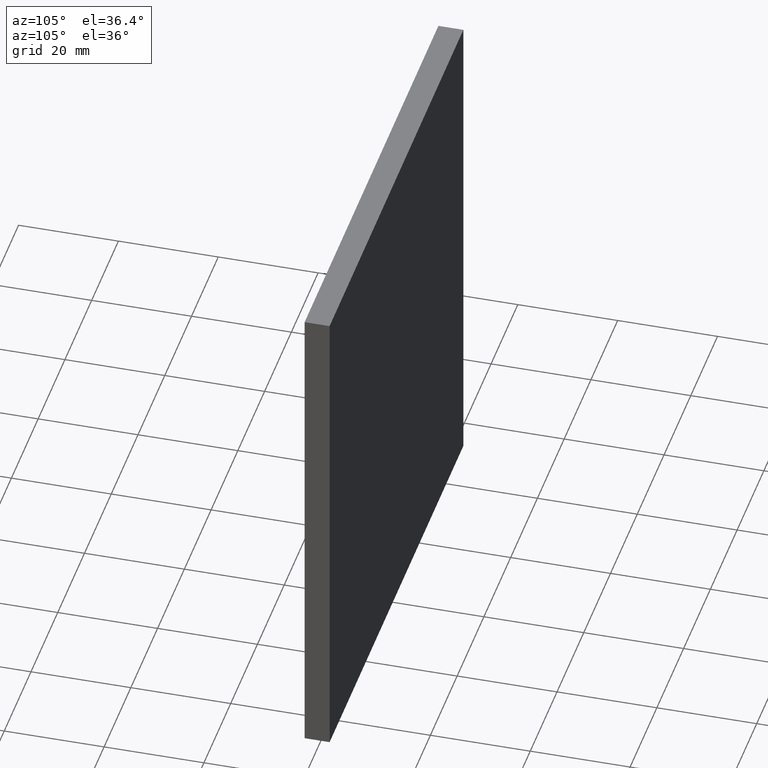
[diagram: clean part render]
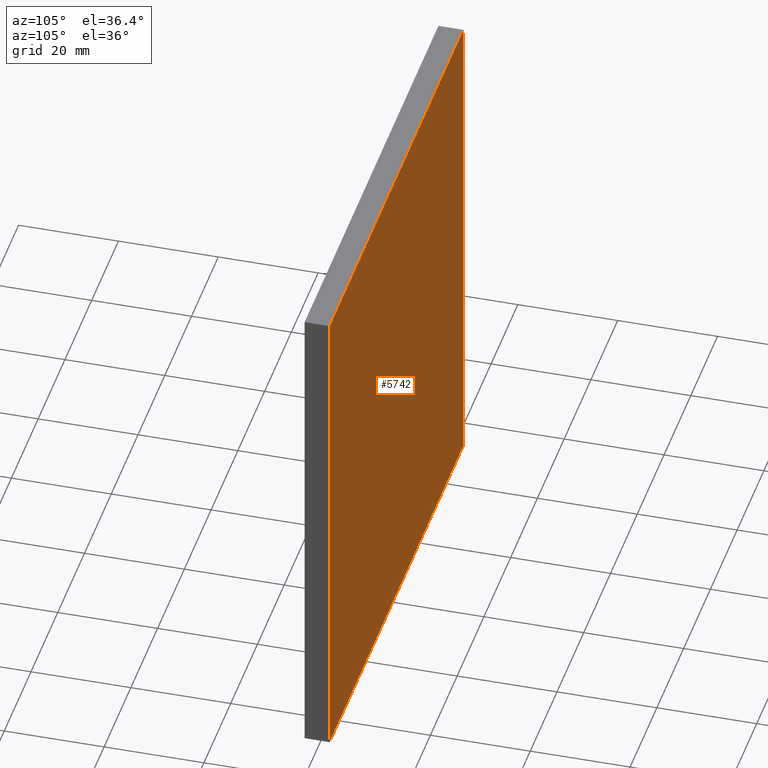
[diagram: same view with one face highlighted and labeled with its STEP entity id]
A machine part, auxiliary view. The second image highlights one B-rep face of the part: STEP entity #5742.
In plain terms, the highlighted planar face has unit normal (0, 1, 0).
Its self-contained STEP definition (entity closure, byte-faithful):
#9 = DIRECTION ( 'NONE',  ( 0.000000000000000000, 1.000000000000000000, 0.000000000000000000 ) ) ;
#159 = FACE_OUTER_BOUND ( 'NONE', #16706, .T. ) ;
#445 = ORIENTED_EDGE ( 'NONE', *, *, #2318, .T. ) ;
#573 = VERTEX_POINT ( 'NONE', #4289 ) ;
#965 = CARTESIAN_POINT ( 'NONE',  ( 49.99999999999997158, 2.500000000000000000, -50.00000000000000711 ) ) ;
#1397 = ORIENTED_EDGE ( 'NONE', *, *, #10445, .T. ) ;
#1683 = CARTESIAN_POINT ( 'NONE',  ( -50.00000000000002132, 2.500000000000000000, -50.00000000000000711 ) ) ;
#1936 = EDGE_CURVE ( 'NONE', #11470, #9942, #7112, .T. ) ;
#2315 = LINE ( 'NONE', #5085, #12150 ) ;
#2318 = EDGE_CURVE ( 'NONE', #13378, #11470, #2315, .T. ) ;
#4289 = CARTESIAN_POINT ( 'NONE',  ( 49.99999999999999289, 2.500000000000000000, 49.99999999999999289 ) ) ;
#5015 = DIRECTION ( 'NONE',  ( -2.081668171172168513E-16, -0.000000000000000000, -1.000000000000000000 ) ) ;
#5085 = CARTESIAN_POINT ( 'NONE',  ( -50.00000000000002132, 2.500000000000000000, -50.00000000000000711 ) ) ;
#5136 = ORIENTED_EDGE ( 'NONE', *, *, #11517, .T. ) ;
#5742 = ADVANCED_FACE ( 'NONE', ( #159 ), #13498, .T. ) ;
#6685 = CARTESIAN_POINT ( 'NONE',  ( -50.00000000000000711, 2.500000000000000000, 49.99999999999999289 ) ) ;
#7112 = LINE ( 'NONE', #1683, #9234 ) ;
#9060 = CARTESIAN_POINT ( 'NONE',  ( -50.00000000000002132, 2.500000000000000000, -50.00000000000000711 ) ) ;
#9075 = VECTOR ( 'NONE', #5015, 1000.000000000000000 ) ;
#9234 = VECTOR ( 'NONE', #12442, 1000.000000000000000 ) ;
#9398 = CARTESIAN_POINT ( 'NONE',  ( 0.000000000000000000, 2.500000000000000000, 0.000000000000000000 ) ) ;
#9942 = VERTEX_POINT ( 'NONE', #14123 ) ;
#9979 = DIRECTION ( 'NONE',  ( -1.000000000000000000, -0.000000000000000000, -0.000000000000000000 ) ) ;
#10445 = EDGE_CURVE ( 'NONE', #573, #13378, #10539, .T. ) ;
#10539 = LINE ( 'NONE', #965, #9075 ) ;
#11158 = CARTESIAN_POINT ( 'NONE',  ( 49.99999999999997158, 2.500000000000000000, -50.00000000000000711 ) ) ;
#11470 = VERTEX_POINT ( 'NONE', #9060 ) ;
#11517 = EDGE_CURVE ( 'NONE', #9942, #573, #16202, .T. ) ;
#12150 = VECTOR ( 'NONE', #9979, 1000.000000000000000 ) ;
#12442 = DIRECTION ( 'NONE',  ( 1.387778780781445676E-16, 0.000000000000000000, 1.000000000000000000 ) ) ;
#13378 = VERTEX_POINT ( 'NONE', #11158 ) ;
#13442 = DIRECTION ( 'NONE',  ( 0.000000000000000000, -0.000000000000000000, 1.000000000000000000 ) ) ;
#13498 = PLANE ( 'NONE',  #13686 ) ;
#13686 = AXIS2_PLACEMENT_3D ( 'NONE', #9398, #9, #13442 ) ;
#14123 = CARTESIAN_POINT ( 'NONE',  ( -50.00000000000000711, 2.500000000000000000, 49.99999999999999289 ) ) ;
#14748 = VECTOR ( 'NONE', #16212, 1000.000000000000000 ) ;
#16202 = LINE ( 'NONE', #6685, #14748 ) ;
#16212 = DIRECTION ( 'NONE',  ( 1.000000000000000000, 0.000000000000000000, 0.000000000000000000 ) ) ;
#16706 = EDGE_LOOP ( 'NONE', ( #1397, #445, #17393, #5136 ) ) ;
#17393 = ORIENTED_EDGE ( 'NONE', *, *, #1936, .T. ) ;